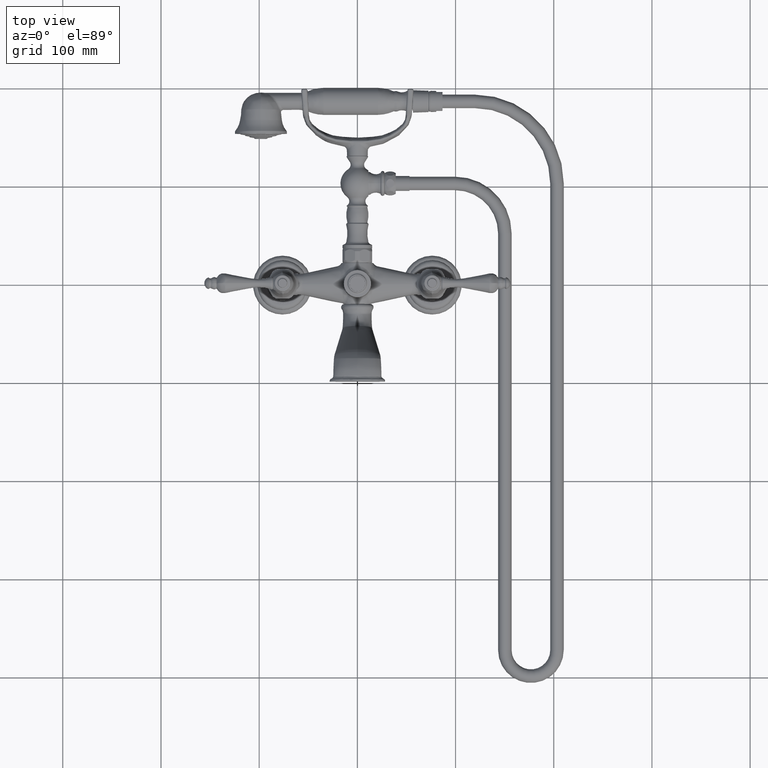
[diagram: clean part render]
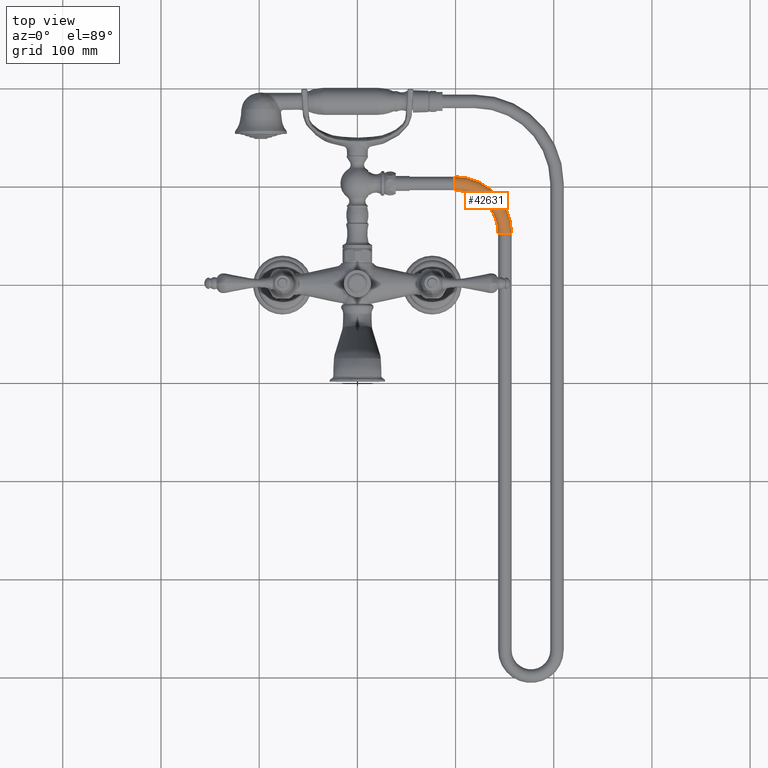
[diagram: same view with one face highlighted and labeled with its STEP entity id]
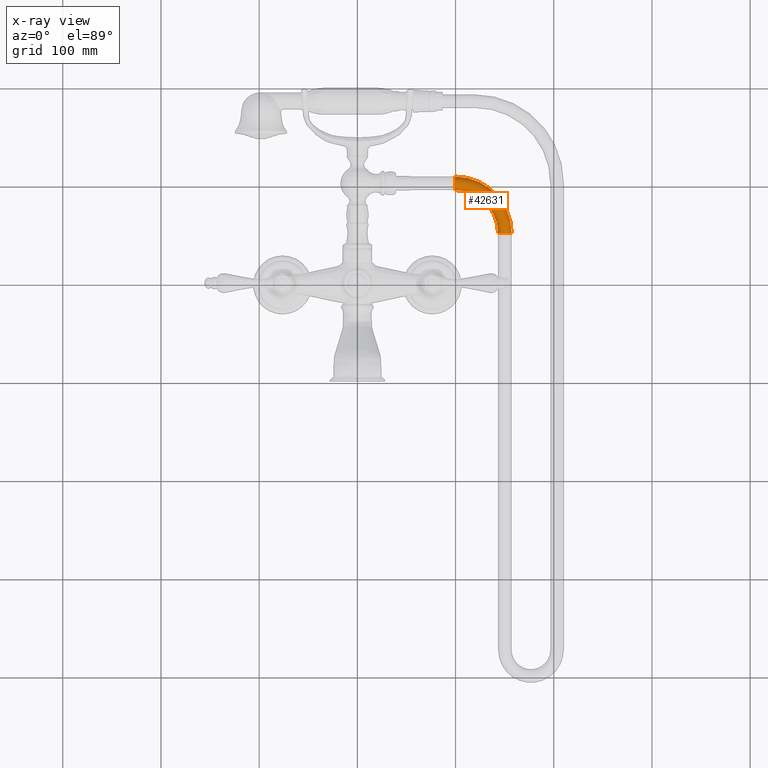
[diagram: x-ray of the same camera — body ghosted, the highlighted face saturated]
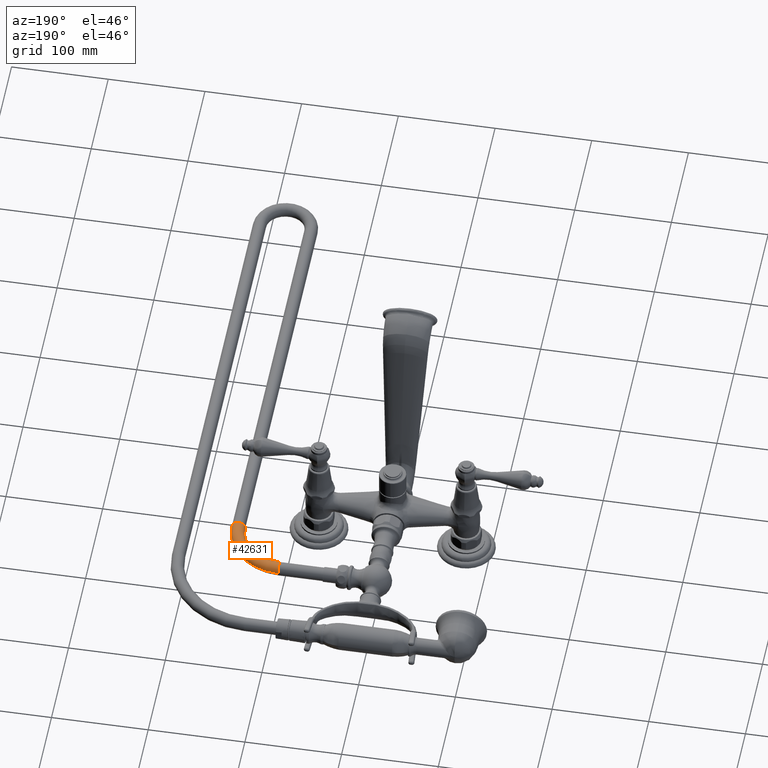
[diagram: same view with one face highlighted and labeled with its STEP entity id]
A machine part, top view. The second image highlights one B-rep face of the part: STEP entity #42631.
The next image is the same camera in x-ray: the body ghosted, the highlighted face saturated — about 0% of this face is hidden behind the body in this view.
A second angle (auxiliary view) of the same face is appended — the face is thin or edge-on in the first view.
In plain terms, the highlighted toroidal blend (fillet) surface has major radius 50.8 mm and minor (blend) radius 6.858 mm.
Its self-contained STEP definition (entity closure, byte-faithful):
#17500=CARTESIAN_POINT('',(5.913426495012E0,2.048267716535E0,0.E0));
#17501=DIRECTION('',(0.E0,1.E0,0.E0));
#17502=DIRECTION('',(-1.E0,0.E0,0.E0));
#17503=AXIS2_PLACEMENT_3D('',#17500,#17501,#17502);
#17505=CARTESIAN_POINT('',(3.913426495012E0,2.048267716535E0,0.E0));
#17506=DIRECTION('',(0.E0,0.E0,1.E0));
#17507=DIRECTION('',(1.E0,0.E0,0.E0));
#17508=AXIS2_PLACEMENT_3D('',#17505,#17506,#17507);
#17515=CARTESIAN_POINT('',(3.913426495012E0,2.048267716535E0,0.E0));
#17516=DIRECTION('',(0.E0,0.E0,1.E0));
#17517=DIRECTION('',(1.E0,0.E0,0.E0));
#17518=AXIS2_PLACEMENT_3D('',#17515,#17516,#17517);
#17529=CARTESIAN_POINT('',(3.913426495012E0,4.048267716535E0,0.E0));
#17530=DIRECTION('',(-1.E0,0.E0,0.E0));
#17531=DIRECTION('',(0.E0,-1.E0,0.E0));
#17532=AXIS2_PLACEMENT_3D('',#17529,#17530,#17531);
#19335=CARTESIAN_POINT('',(6.183426495012E0,2.048267716535E0,0.E0));
#19336=CARTESIAN_POINT('',(5.643426495012E0,2.048267716535E0,0.E0));
#19337=VERTEX_POINT('',#19335);
#19338=VERTEX_POINT('',#19336);
#19339=CARTESIAN_POINT('',(3.913426495012E0,4.318267716535E0,0.E0));
#19340=CARTESIAN_POINT('',(3.913426495012E0,3.778267716535E0,0.E0));
#19341=VERTEX_POINT('',#19339);
#19342=VERTEX_POINT('',#19340);
#42617=CARTESIAN_POINT('',(3.913426495012E0,2.048267716535E0,0.E0));
#42618=DIRECTION('',(0.E0,0.E0,1.E0));
#42619=DIRECTION('',(-1.E0,0.E0,0.E0));
#42620=AXIS2_PLACEMENT_3D('',#42617,#42618,#42619);
#42621=TOROIDAL_SURFACE('',#42620,2.E0,2.7E-1);
#42622=ORIENTED_EDGE('',*,*,#42611,.F.);
#42624=ORIENTED_EDGE('',*,*,#42623,.T.);
#42626=ORIENTED_EDGE('',*,*,#42625,.T.);
#42628=ORIENTED_EDGE('',*,*,#42627,.F.);
#42629=EDGE_LOOP('',(#42622,#42624,#42626,#42628));
#42630=FACE_OUTER_BOUND('',#42629,.F.);
#42631=ADVANCED_FACE('',(#42630),#42621,.T.);
#17504=CIRCLE('',#17503,2.7E-1);
#17509=CIRCLE('',#17508,1.73E0);
#17519=CIRCLE('',#17518,2.27E0);
#17533=CIRCLE('',#17532,2.7E-1);
#42611=EDGE_CURVE('',#19338,#19337,#17504,.T.);
#42623=EDGE_CURVE('',#19338,#19342,#17509,.T.);
#42625=EDGE_CURVE('',#19342,#19341,#17533,.T.);
#42627=EDGE_CURVE('',#19337,#19341,#17519,.T.);